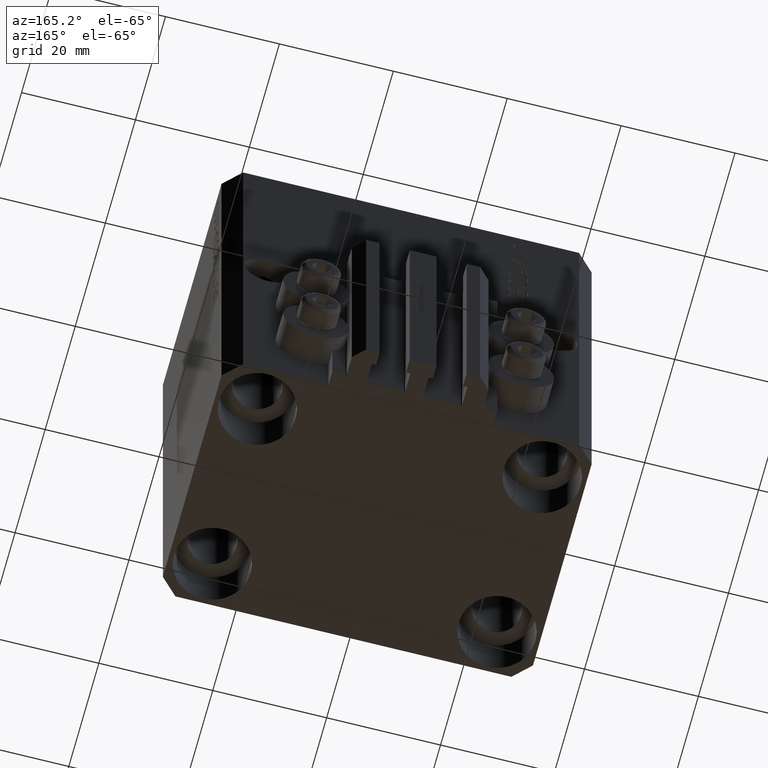
[diagram: clean part render]
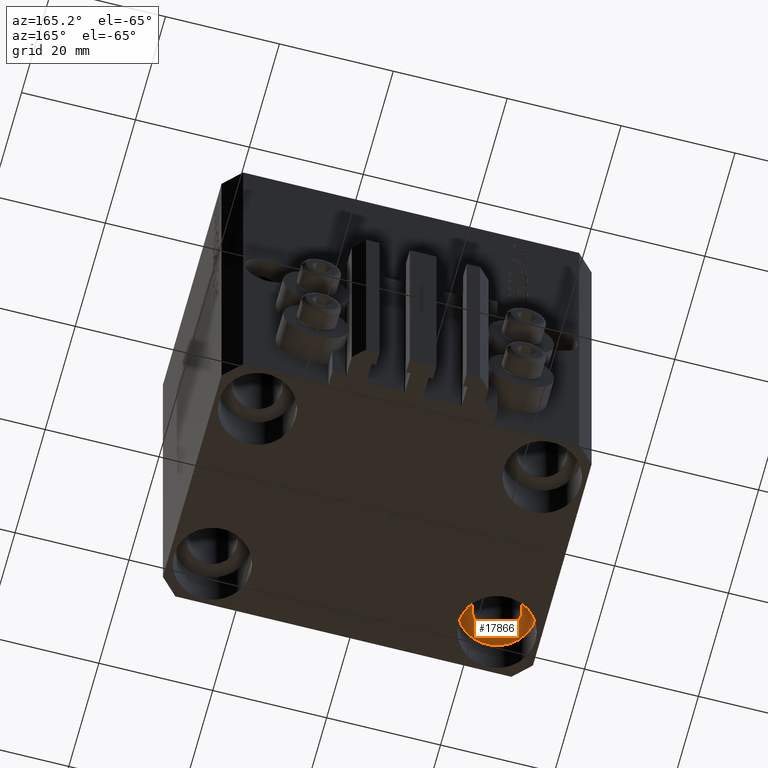
[diagram: same view with one face highlighted and labeled with its STEP entity id]
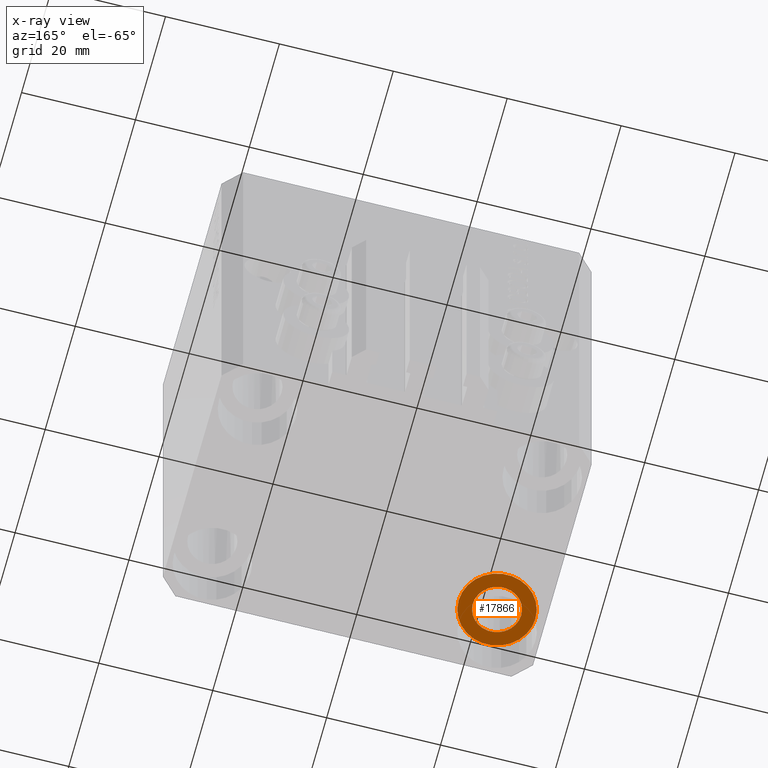
[diagram: x-ray of the same camera — body ghosted, the highlighted face saturated]
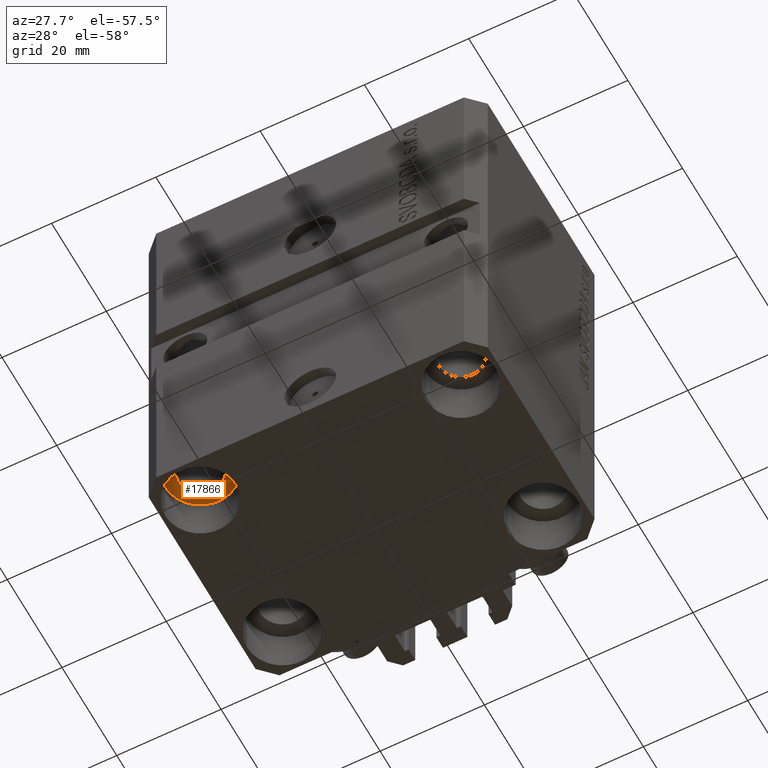
[diagram: same view with one face highlighted and labeled with its STEP entity id]
A machine part, auxiliary view. The second image highlights one B-rep face of the part: STEP entity #17866.
The next image is the same camera in x-ray: the body ghosted, the highlighted face saturated — about 0% of this face is hidden behind the body in this view.
A second angle (auxiliary view) of the same face is appended — the face is thin or edge-on in the first view.
In plain terms, the highlighted planar face has unit normal (0, 0, -1).
Its self-contained STEP definition (entity closure, byte-faithful):
#39 = EDGE_CURVE ( 'NONE', #28307, #18263, #25321, .T. ) ;
#1852 = PLANE ( 'NONE',  #31761 ) ;
#5508 = ORIENTED_EDGE ( 'NONE', *, *, #38994, .F. ) ;
#6358 = FACE_BOUND ( 'NONE', #9573, .T. ) ;
#6369 = EDGE_LOOP ( 'NONE', ( #12152, #5508 ) ) ;
#7813 = CARTESIAN_POINT ( 'NONE',  ( -31.75000000004154899, -15.00000000000000000, -68.00000000000000000 ) ) ;
#8799 = VERTEX_POINT ( 'NONE', #21040 ) ;
#9573 = EDGE_LOOP ( 'NONE', ( #29427, #42645 ) ) ;
#10096 = AXIS2_PLACEMENT_3D ( 'NONE', #24949, #20650, #39497 ) ;
#10588 = CIRCLE ( 'NONE', #13640, 4.250000000041540105 ) ;
#12152 = ORIENTED_EDGE ( 'NONE', *, *, #43720, .F. ) ;
#12781 = CARTESIAN_POINT ( 'NONE',  ( -25.00000000000000355, -15.00000000000000000, -68.00000000000000000 ) ) ;
#13640 = AXIS2_PLACEMENT_3D ( 'NONE', #23274, #45685, #19687 ) ;
#14584 = CARTESIAN_POINT ( 'NONE',  ( -20.74999999995846522, -15.00000000000000000, -68.00000000000000000 ) ) ;
#17866 = ADVANCED_FACE ( 'NONE', ( #6358, #27850 ), #1852, .T. ) ;
#18263 = VERTEX_POINT ( 'NONE', #14584 ) ;
#19565 = DIRECTION ( 'NONE',  ( 1.000000000000000000, 0.000000000000000000, 0.000000000000000000 ) ) ;
#19687 = DIRECTION ( 'NONE',  ( -1.000000000000000000, 0.000000000000000000, 0.000000000000000000 ) ) ;
#20650 = DIRECTION ( 'NONE',  ( 0.000000000000000000, 0.000000000000000000, -1.000000000000000000 ) ) ;
#21040 = CARTESIAN_POINT ( 'NONE',  ( -18.24999999995845812, -15.00000000000000000, -68.00000000000000000 ) ) ;
#23150 = DIRECTION ( 'NONE',  ( -0.000000000000000000, -0.000000000000000000, 1.000000000000000000 ) ) ;
#23274 = CARTESIAN_POINT ( 'NONE',  ( -25.00000000000000355, -15.00000000000000000, -68.00000000000000000 ) ) ;
#24949 = CARTESIAN_POINT ( 'NONE',  ( -25.00000000000000355, -15.00000000000000000, -68.00000000000000000 ) ) ;
#25321 = CIRCLE ( 'NONE', #10096, 4.250000000041540105 ) ;
#26507 = CARTESIAN_POINT ( 'NONE',  ( -25.00000000000000355, -15.00000000000000000, -68.00000000000000000 ) ) ;
#27382 = DIRECTION ( 'NONE',  ( 0.000000000000000000, 0.000000000000000000, -1.000000000000000000 ) ) ;
#27850 = FACE_OUTER_BOUND ( 'NONE', #6369, .T. ) ;
#28307 = VERTEX_POINT ( 'NONE', #45361 ) ;
#29427 = ORIENTED_EDGE ( 'NONE', *, *, #41081, .F. ) ;
#31630 = DIRECTION ( 'NONE',  ( -0.000000000000000000, -0.000000000000000000, 1.000000000000000000 ) ) ;
#31761 = AXIS2_PLACEMENT_3D ( 'NONE', #46207, #27382, #38575 ) ;
#33499 = CIRCLE ( 'NONE', #44931, 6.750000000041541881 ) ;
#37165 = CIRCLE ( 'NONE', #40235, 6.750000000041541881 ) ;
#38575 = DIRECTION ( 'NONE',  ( 1.000000000000000000, 0.000000000000000000, 0.000000000000000000 ) ) ;
#38994 = EDGE_CURVE ( 'NONE', #8799, #43052, #37165, .T. ) ;
#39497 = DIRECTION ( 'NONE',  ( -1.000000000000000000, 0.000000000000000000, 0.000000000000000000 ) ) ;
#40235 = AXIS2_PLACEMENT_3D ( 'NONE', #12781, #31630, #46160 ) ;
#41081 = EDGE_CURVE ( 'NONE', #18263, #28307, #10588, .T. ) ;
#42645 = ORIENTED_EDGE ( 'NONE', *, *, #39, .F. ) ;
#43052 = VERTEX_POINT ( 'NONE', #7813 ) ;
#43720 = EDGE_CURVE ( 'NONE', #43052, #8799, #33499, .T. ) ;
#44931 = AXIS2_PLACEMENT_3D ( 'NONE', #26507, #23150, #19565 ) ;
#45361 = CARTESIAN_POINT ( 'NONE',  ( -29.25000000004154543, -15.00000000000000000, -68.00000000000000000 ) ) ;
#45685 = DIRECTION ( 'NONE',  ( 0.000000000000000000, 0.000000000000000000, -1.000000000000000000 ) ) ;
#46160 = DIRECTION ( 'NONE',  ( 1.000000000000000000, 0.000000000000000000, 0.000000000000000000 ) ) ;
#46207 = CARTESIAN_POINT ( 'NONE',  ( -25.00000000000000355, -15.00000000000000000, -68.00000000000000000 ) ) ;